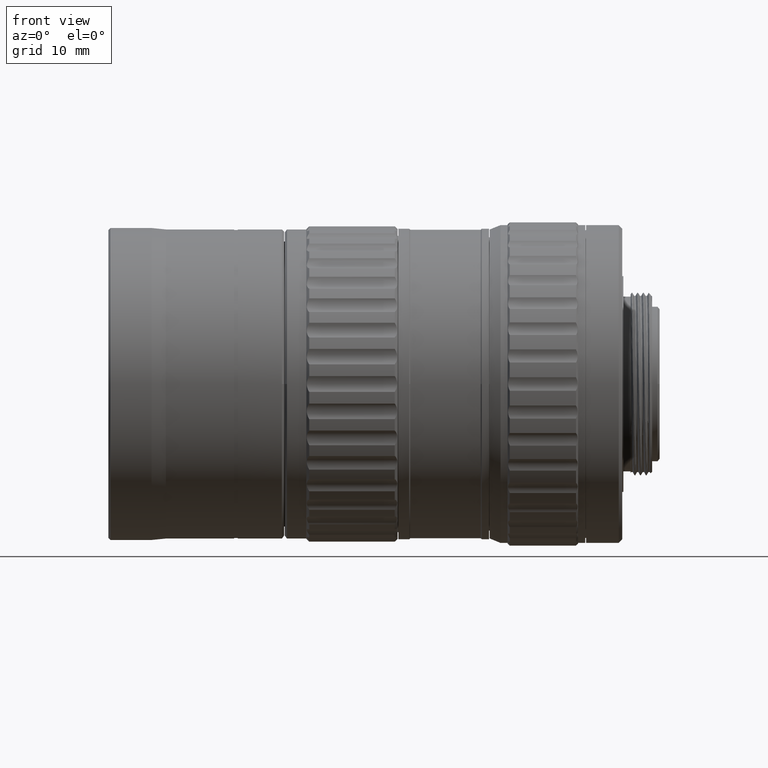
[diagram: clean part render]
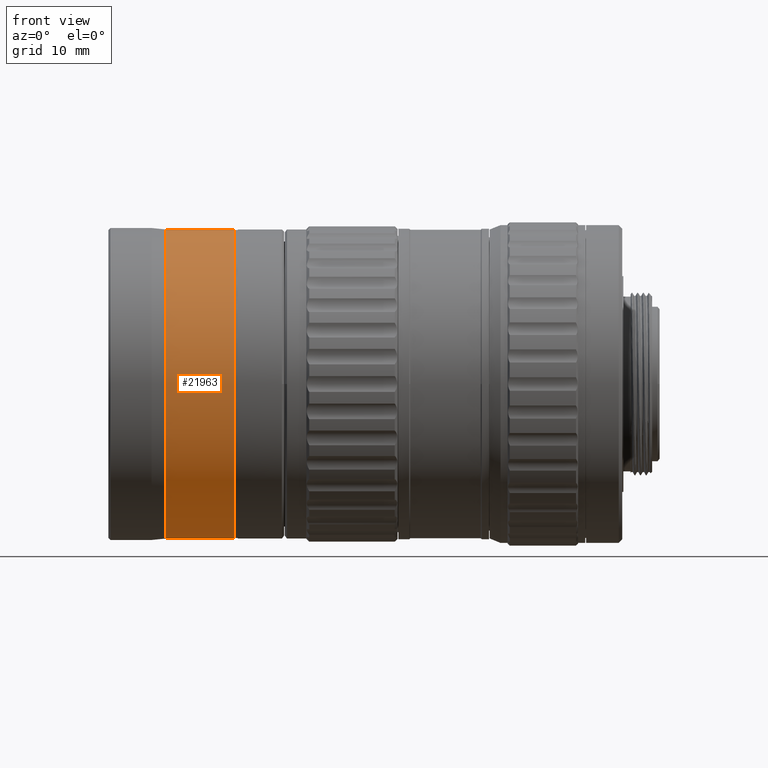
[diagram: same view with one face highlighted and labeled with its STEP entity id]
A machine part, front view. The second image highlights one B-rep face of the part: STEP entity #21963.
In plain terms, the highlighted cylindrical surface (partial cylindrical patch) has radius 21.5 mm, axis along (1, -0, 0).
Its self-contained STEP definition (entity closure, byte-faithful):
#1339 = CARTESIAN_POINT ( 'NONE',  ( 8.029999999999860805, 0.000000000000000000, -21.50000000000000000 ) ) ;
#3857 = CIRCLE ( 'NONE', #27597, 21.50000000000000000 ) ;
#4914 = DIRECTION ( 'NONE',  ( 0.000000000000000000, -1.000000000000000000, 0.000000000000000000 ) ) ;
#5371 = CARTESIAN_POINT ( 'NONE',  ( 8.029999999999860805, 2.645237086158522406E-15, -21.50000000000000000 ) ) ;
#5937 = LINE ( 'NONE', #1339, #47909 ) ;
#13178 = EDGE_CURVE ( 'NONE', #38363, #46770, #52471, .T. ) ;
#14067 = ORIENTED_EDGE ( 'NONE', *, *, #27464, .T. ) ;
#14741 = CARTESIAN_POINT ( 'NONE',  ( 8.029999999999860805, 0.000000000000000000, 0.000000000000000000 ) ) ;
#15045 = AXIS2_PLACEMENT_3D ( 'NONE', #14741, #22764, #36173 ) ;
#15944 = CARTESIAN_POINT ( 'NONE',  ( 17.53000000000173131, 0.000000000000000000, -21.50000000000000000 ) ) ;
#18647 = CARTESIAN_POINT ( 'NONE',  ( 8.029999999999860805, 0.000000000000000000, 0.000000000000000000 ) ) ;
#18835 = VERTEX_POINT ( 'NONE', #5371 ) ;
#19048 = VERTEX_POINT ( 'NONE', #15944 ) ;
#21963 = ADVANCED_FACE ( 'NONE', ( #36447 ), #53929, .T. ) ;
#22363 = ORIENTED_EDGE ( 'NONE', *, *, #13178, .F. ) ;
#22528 = AXIS2_PLACEMENT_3D ( 'NONE', #49599, #54174, #31567 ) ;
#22764 = DIRECTION ( 'NONE',  ( 1.000000000000000000, -0.000000000000000000, 0.000000000000000000 ) ) ;
#22984 = DIRECTION ( 'NONE',  ( 1.000000000000000000, -0.000000000000000000, 0.000000000000000000 ) ) ;
#27315 = CARTESIAN_POINT ( 'NONE',  ( 8.029999999999860805, 0.000000000000000000, 21.50000000000000000 ) ) ;
#27464 = EDGE_CURVE ( 'NONE', #18835, #19048, #5937, .T. ) ;
#27597 = AXIS2_PLACEMENT_3D ( 'NONE', #18647, #40915, #4914 ) ;
#28061 = EDGE_LOOP ( 'NONE', ( #22363, #32194, #14067, #50135 ) ) ;
#30718 = CARTESIAN_POINT ( 'NONE',  ( 8.029999999999860805, 2.632990618166809630E-15, 21.50000000000000000 ) ) ;
#31567 = DIRECTION ( 'NONE',  ( 0.000000000000000000, 0.000000000000000000, -1.000000000000000000 ) ) ;
#32194 = ORIENTED_EDGE ( 'NONE', *, *, #37350, .F. ) ;
#32487 = VECTOR ( 'NONE', #22984, 1000.000000000000000 ) ;
#36173 = DIRECTION ( 'NONE',  ( 0.000000000000000000, 0.000000000000000000, -1.000000000000000000 ) ) ;
#36447 = FACE_OUTER_BOUND ( 'NONE', #28061, .T. ) ;
#37350 = EDGE_CURVE ( 'NONE', #18835, #38363, #3857, .T. ) ;
#38363 = VERTEX_POINT ( 'NONE', #27315 ) ;
#40915 = DIRECTION ( 'NONE',  ( -1.000000000000000000, -0.000000000000000000, -0.000000000000000000 ) ) ;
#45361 = CIRCLE ( 'NONE', #22528, 21.50000000000000000 ) ;
#45373 = DIRECTION ( 'NONE',  ( 1.000000000000000000, -0.000000000000000000, 0.000000000000000000 ) ) ;
#46770 = VERTEX_POINT ( 'NONE', #55587 ) ;
#47909 = VECTOR ( 'NONE', #45373, 1000.000000000000000 ) ;
#49599 = CARTESIAN_POINT ( 'NONE',  ( 17.53000000000173131, 0.000000000000000000, 0.000000000000000000 ) ) ;
#50135 = ORIENTED_EDGE ( 'NONE', *, *, #51178, .F. ) ;
#51178 = EDGE_CURVE ( 'NONE', #46770, #19048, #45361, .T. ) ;
#52471 = LINE ( 'NONE', #30718, #32487 ) ;
#53929 = CYLINDRICAL_SURFACE ( 'NONE', #15045, 21.50000000000000000 ) ;
#54174 = DIRECTION ( 'NONE',  ( 1.000000000000000000, -0.000000000000000000, 0.000000000000000000 ) ) ;
#55587 = CARTESIAN_POINT ( 'NONE',  ( 17.53000000000173131, 2.632990618166809630E-15, 21.50000000000000000 ) ) ;